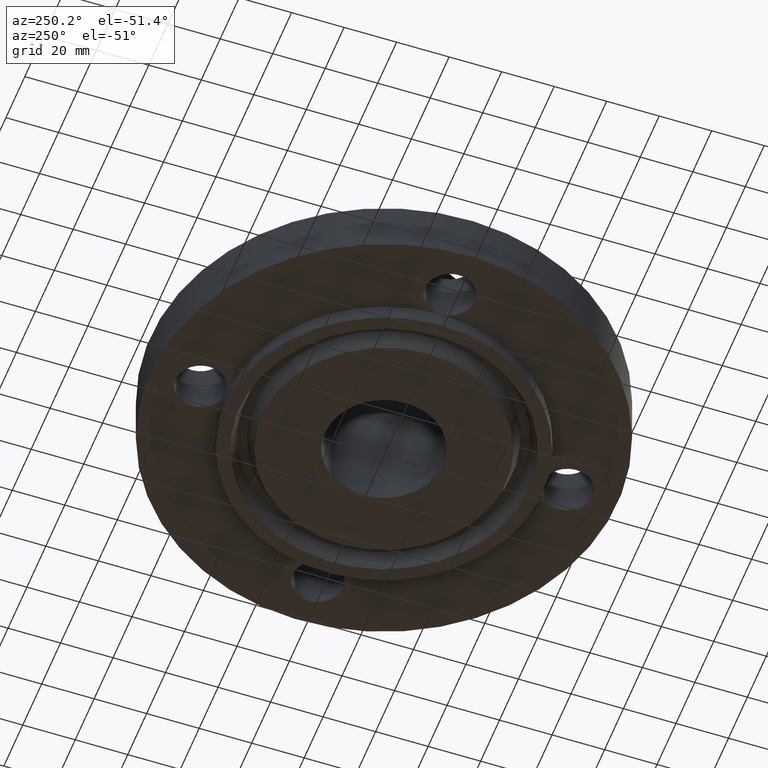
[diagram: clean part render]
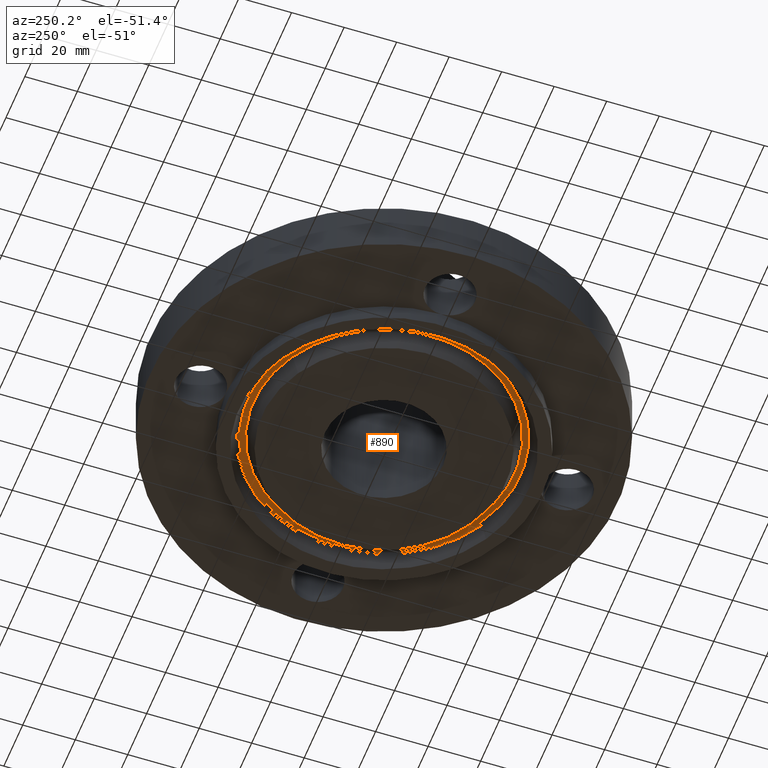
[diagram: same view with one face highlighted and labeled with its STEP entity id]
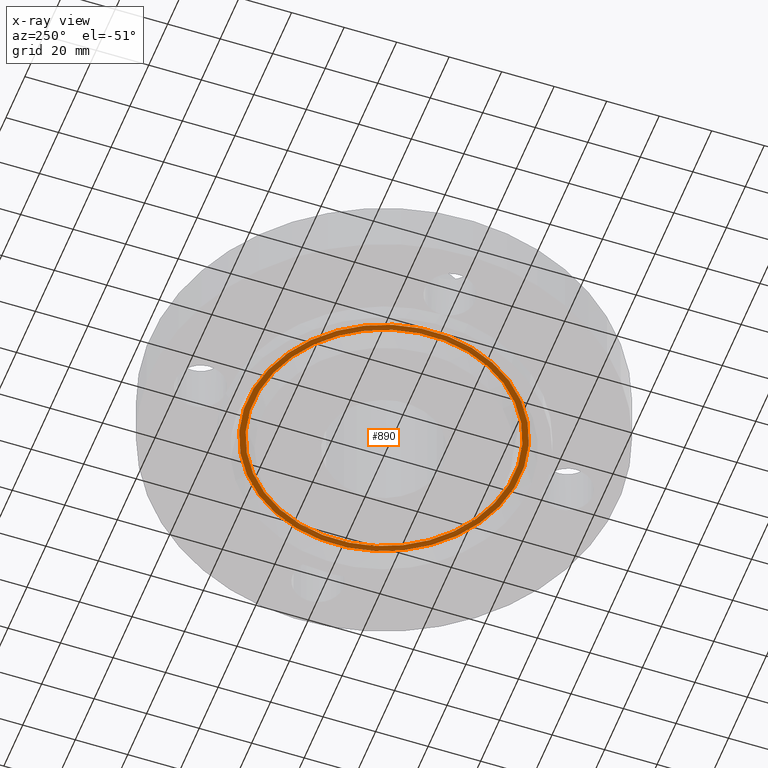
[diagram: x-ray of the same camera — body ghosted, the highlighted face saturated]
A machine part, auxiliary view. The second image highlights one B-rep face of the part: STEP entity #890.
The next image is the same camera in x-ray: the body ghosted, the highlighted face saturated — about 0% of this face is hidden behind the body in this view.
In plain terms, the highlighted planar face has unit normal (0, 0, -1).
Its self-contained STEP definition (entity closure, byte-faithful):
#522=AXIS2_PLACEMENT_3D('Plane Axis2P3D',#519,#520,#521) ;
#812=AXIS2_PLACEMENT_3D('Circle Axis2P3D',#810,#811,$) ;
#858=AXIS2_PLACEMENT_3D('Circle Axis2P3D',#856,#857,$) ;
#874=AXIS2_PLACEMENT_3D('Circle Axis2P3D',#872,#873,$) ;
#883=AXIS2_PLACEMENT_3D('Circle Axis2P3D',#881,#882,$) ;
#519=CARTESIAN_POINT('Axis2P3D Location',(0.,2.37500000001,0.)) ;
#807=CARTESIAN_POINT('Vertex',(-0.980459923511,1.79471985162,-8.74191357973E-017)) ;
#810=CARTESIAN_POINT('Axis2P3D Location',(0.,0.,-8.74191357973E-017)) ;
#814=CARTESIAN_POINT('Vertex',(0.980459923511,-1.79471985162,-8.74191357973E-017)) ;
#856=CARTESIAN_POINT('Axis2P3D Location',(0.,0.,-8.74191357973E-017)) ;
#872=CARTESIAN_POINT('Axis2P3D Location',(0.,0.,0.)) ;
#876=CARTESIAN_POINT('Vertex',(0.937242230913,-1.71561039596,1.00532006167E-016)) ;
#878=CARTESIAN_POINT('Vertex',(-0.937242230913,1.71561039596,1.00532006167E-016)) ;
#881=CARTESIAN_POINT('Axis2P3D Location',(0.,0.,0.)) ;
#520=DIRECTION('Axis2P3D Direction',(0.,0.,-0.0393700787402)) ;
#521=DIRECTION('Axis2P3D XDirection',(0.0393700787402,0.,0.)) ;
#811=DIRECTION('Axis2P3D Direction',(0.,0.,0.0393700787402)) ;
#857=DIRECTION('Axis2P3D Direction',(0.,0.,0.0393700787402)) ;
#873=DIRECTION('Axis2P3D Direction',(0.,0.,-0.0393700787402)) ;
#882=DIRECTION('Axis2P3D Direction',(0.,0.,-0.0393700787402)) ;
#869=ORIENTED_EDGE('',*,*,#816,.F.) ;
#870=ORIENTED_EDGE('',*,*,#860,.F.) ;
#887=ORIENTED_EDGE('',*,*,#880,.T.) ;
#888=ORIENTED_EDGE('',*,*,#885,.T.) ;
#889=FACE_BOUND('',#886,.T.) ;
#890=ADVANCED_FACE('PartBody',(#871,#889),#523,.T.) ;
#813=CIRCLE('generated circle',#812,2.04507237217) ;
#859=CIRCLE('generated circle',#858,2.04507237217) ;
#875=CIRCLE('generated circle',#874,1.95492762785) ;
#884=CIRCLE('generated circle',#883,1.95492762785) ;
#816=EDGE_CURVE('',#808,#815,#813,.T.) ;
#860=EDGE_CURVE('',#815,#808,#859,.T.) ;
#880=EDGE_CURVE('',#877,#879,#875,.F.) ;
#885=EDGE_CURVE('',#879,#877,#884,.F.) ;
#868=EDGE_LOOP('',(#869,#870)) ;
#886=EDGE_LOOP('',(#887,#888)) ;
#871=FACE_OUTER_BOUND('',#868,.T.) ;
#523=PLANE('',#522) ;
#808=VERTEX_POINT('',#807) ;
#815=VERTEX_POINT('',#814) ;
#877=VERTEX_POINT('',#876) ;
#879=VERTEX_POINT('',#878) ;